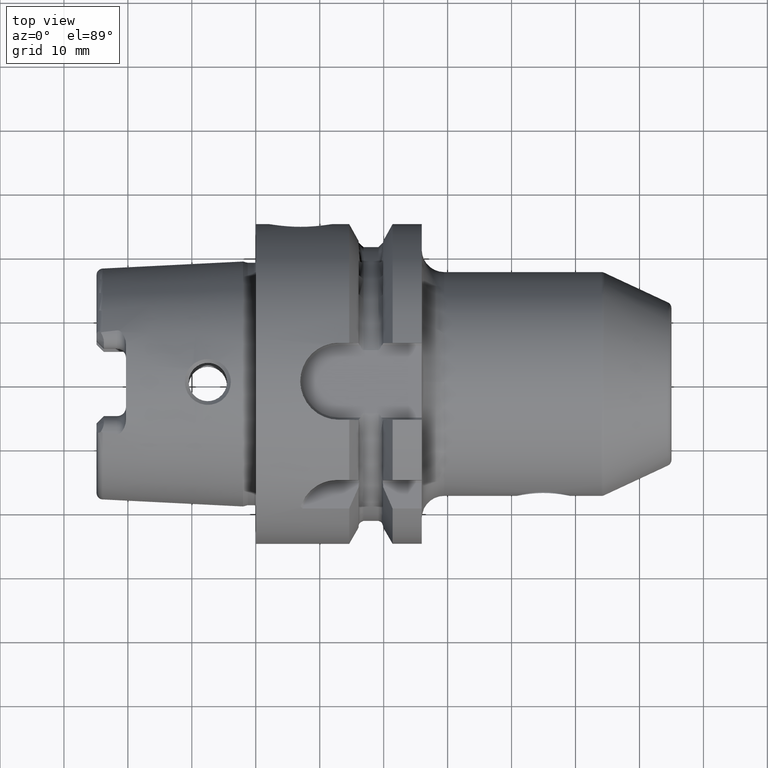
[diagram: clean part render]
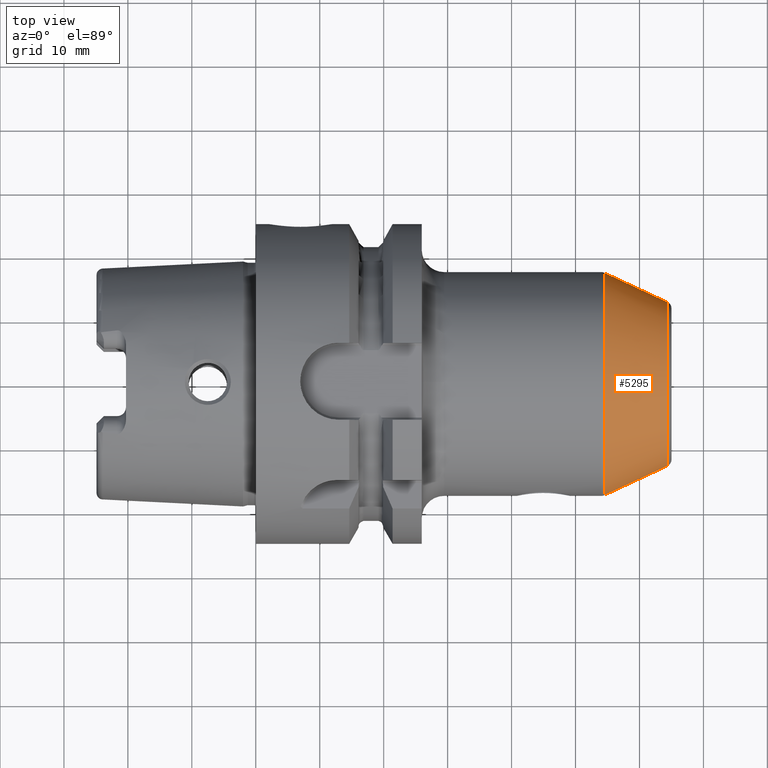
[diagram: same view with one face highlighted and labeled with its STEP entity id]
A machine part, top view. The second image highlights one B-rep face of the part: STEP entity #5295.
In plain terms, the highlighted conical surface has half-angle 25 deg.
Its self-contained STEP definition (entity closure, byte-faithful):
#1804=CARTESIAN_POINT('',(5.447838899655E1,0.E0,0.E0));
#1805=DIRECTION('',(-1.E0,0.E0,0.E0));
#1806=DIRECTION('',(0.E0,-1.E0,0.E0));
#1807=AXIS2_PLACEMENT_3D('',#1804,#1805,#1806);
#1809=CARTESIAN_POINT('',(6.442261826174E1,0.E0,0.E0));
#1810=DIRECTION('',(-1.E0,0.E0,0.E0));
#1811=DIRECTION('',(0.E0,-1.E0,0.E0));
#1812=AXIS2_PLACEMENT_3D('',#1809,#1810,#1811);
#1819=DIRECTION('',(-9.063077870366E-1,-4.226182617407E-1,-4.171388748312E-13));
#1820=VECTOR('',#1819,1.097224299231E1);
#1821=CARTESIAN_POINT('',(6.442261826174E1,-1.276923752623E1,
5.135543143520E-13));
#1822=LINE('',#1821,#1820);
#1828=DIRECTION('',(-9.063077870366E-1,4.226182617407E-1,4.162990672260E-13));
#1829=VECTOR('',#1828,1.097224299231E1);
#1830=CARTESIAN_POINT('',(6.442261826174E1,1.276923752623E1,
-5.139452594986E-13));
#1831=LINE('',#1830,#1829);
#3413=CARTESIAN_POINT('',(5.447838899655E1,1.740630778704E1,0.E0));
#3414=CARTESIAN_POINT('',(5.447838899655E1,-1.740630778704E1,0.E0));
#3415=VERTEX_POINT('',#3413);
#3416=VERTEX_POINT('',#3414);
#3417=CARTESIAN_POINT('',(6.442261826174E1,1.276923752623E1,0.E0));
#3418=CARTESIAN_POINT('',(6.442261826174E1,-1.276923752623E1,0.E0));
#3419=VERTEX_POINT('',#3417);
#3420=VERTEX_POINT('',#3418);
#5281=CARTESIAN_POINT('',(5.945050362915E1,0.E0,0.E0));
#5282=DIRECTION('',(-1.E0,0.E0,0.E0));
#5283=DIRECTION('',(0.E0,1.E0,0.E0));
#5284=AXIS2_PLACEMENT_3D('',#5281,#5282,#5283);
#5285=CONICAL_SURFACE('',#5284,1.508777265663E1,2.5E1);
#5286=ORIENTED_EDGE('',*,*,#5275,.T.);
#5288=ORIENTED_EDGE('',*,*,#5287,.F.);
#5290=ORIENTED_EDGE('',*,*,#5289,.F.);
#5292=ORIENTED_EDGE('',*,*,#5291,.T.);
#5293=EDGE_LOOP('',(#5286,#5288,#5290,#5292));
#5294=FACE_OUTER_BOUND('',#5293,.F.);
#5295=ADVANCED_FACE('',(#5294),#5285,.T.);
#1808=CIRCLE('',#1807,1.740630778704E1);
#1813=CIRCLE('',#1812,1.276923752623E1);
#5275=EDGE_CURVE('',#3416,#3415,#1808,.T.);
#5287=EDGE_CURVE('',#3419,#3415,#1831,.T.);
#5289=EDGE_CURVE('',#3420,#3419,#1813,.T.);
#5291=EDGE_CURVE('',#3420,#3416,#1822,.T.);